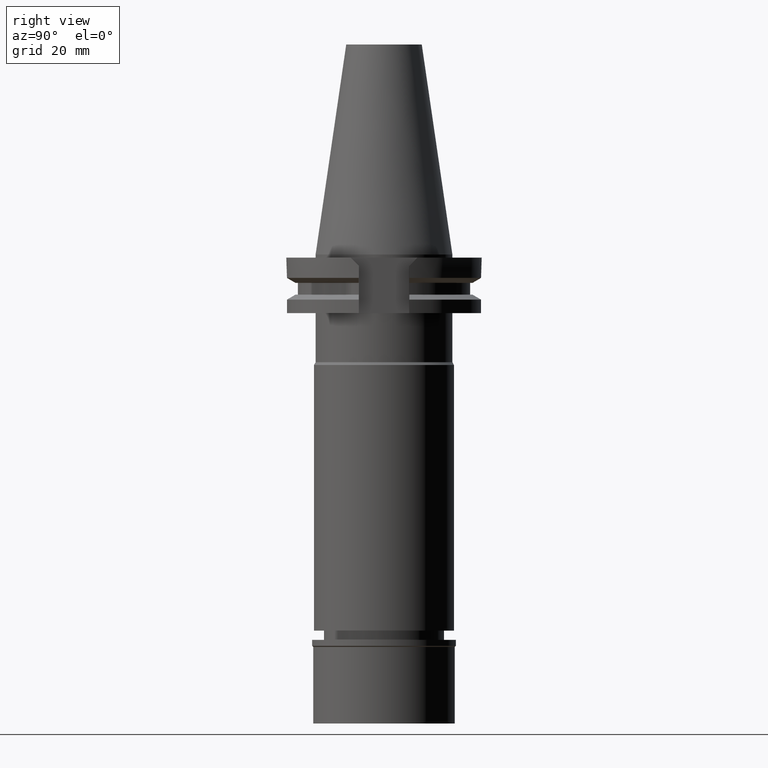
[diagram: clean part render]
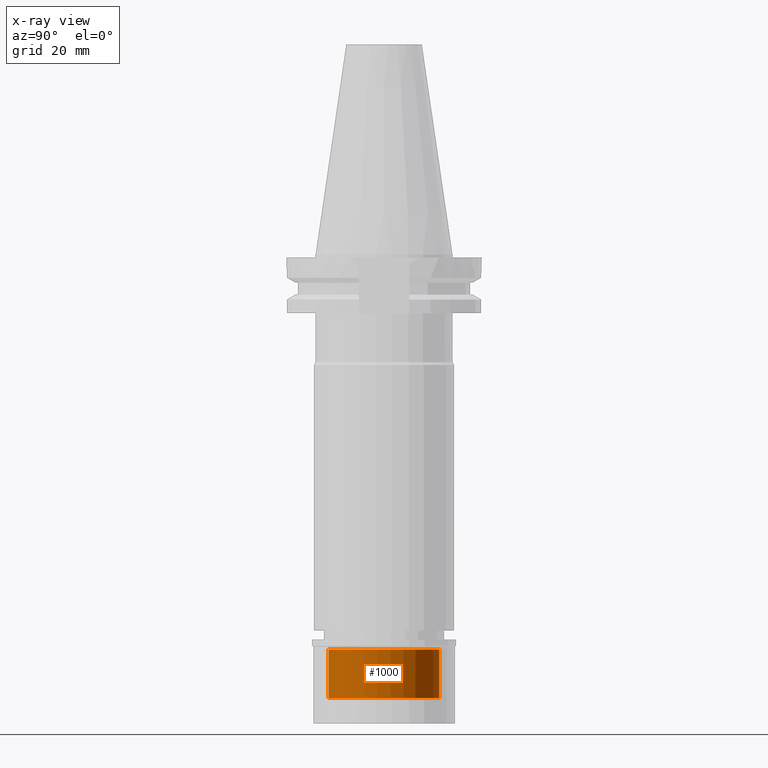
[diagram: x-ray — body ghosted, one internal face saturated and labeled with its STEP entity id]
A machine part, right view, then the same camera in x-ray: the body is ghosted and one INTERNAL B-rep face — a face not visible from any outside direction — is saturated and labeled: STEP entity #1000.
In plain terms, the highlighted cylindrical surface (partial cylindrical patch) has radius 18 mm, axis along (0, 0, -1).
Its self-contained STEP definition (entity closure, byte-faithful):
#65 = DIRECTION ( 'NONE',  ( 0.0000000000000000000, -1.000000000000000000, 0.0000000000000000000 ) ) ;
#151 = ORIENTED_EDGE ( 'NONE', *, *, #3073, .T. ) ;
#276 = FACE_OUTER_BOUND ( 'NONE', #609, .T. ) ;
#481 = VECTOR ( 'NONE', #2636, 1000.000000000000000 ) ;
#497 = CARTESIAN_POINT ( 'NONE',  ( 0.0000000000000000000, 18.00000000000000000, -19.00000000000000000 ) ) ;
#553 = DIRECTION ( 'NONE',  ( 0.0000000000000000000, 0.0000000000000000000, -1.000000000000000000 ) ) ;
#574 = CIRCLE ( 'NONE', #1937, 18.00000000000000000 ) ;
#609 = EDGE_LOOP ( 'NONE', ( #151, #2468, #1714, #2970 ) ) ;
#669 = CIRCLE ( 'NONE', #2078, 18.00000000000000000 ) ;
#703 = LINE ( 'NONE', #2655, #481 ) ;
#852 = DIRECTION ( 'NONE',  ( 0.0000000000000000000, 0.0000000000000000000, 1.000000000000000000 ) ) ;
#1000 = ADVANCED_FACE ( 'NONE', ( #276 ), #1265, .F. ) ;
#1056 = DIRECTION ( 'NONE',  ( 0.0000000000000000000, 1.000000000000000000, 0.0000000000000000000 ) ) ;
#1115 = CARTESIAN_POINT ( 'NONE',  ( 0.0000000000000000000, 0.0000000000000000000, 0.0000000000000000000 ) ) ;
#1123 = EDGE_CURVE ( 'NONE', #2749, #3163, #669, .T. ) ;
#1159 = CARTESIAN_POINT ( 'NONE',  ( 0.0000000000000000000, 18.00000000000000000, -3.200000000000000178 ) ) ;
#1203 = LINE ( 'NONE', #3188, #2965 ) ;
#1265 = CYLINDRICAL_SURFACE ( 'NONE', #1561, 18.00000000000000000 ) ;
#1360 = DIRECTION ( 'NONE',  ( 0.0000000000000000000, -1.000000000000000000, 0.0000000000000000000 ) ) ;
#1561 = AXIS2_PLACEMENT_3D ( 'NONE', #1115, #553, #1360 ) ;
#1615 = CARTESIAN_POINT ( 'NONE',  ( 0.0000000000000000000, 0.0000000000000000000, -3.200000000000000178 ) ) ;
#1714 = ORIENTED_EDGE ( 'NONE', *, *, #1123, .T. ) ;
#1720 = DIRECTION ( 'NONE',  ( 0.0000000000000000000, 0.0000000000000000000, 1.000000000000000000 ) ) ;
#1937 = AXIS2_PLACEMENT_3D ( 'NONE', #3023, #2779, #1056 ) ;
#2078 = AXIS2_PLACEMENT_3D ( 'NONE', #1615, #852, #65 ) ;
#2113 = CARTESIAN_POINT ( 'NONE',  ( 0.0000000000000000000, -18.00000000000000000, -3.200000000000000178 ) ) ;
#2291 = EDGE_CURVE ( 'NONE', #2803, #2749, #703, .T. ) ;
#2435 = EDGE_CURVE ( 'NONE', #2874, #3163, #1203, .T. ) ;
#2468 = ORIENTED_EDGE ( 'NONE', *, *, #2291, .T. ) ;
#2636 = DIRECTION ( 'NONE',  ( 0.0000000000000000000, 0.0000000000000000000, 1.000000000000000000 ) ) ;
#2655 = CARTESIAN_POINT ( 'NONE',  ( 0.0000000000000000000, -18.00000000000000000, -19.00000000000000000 ) ) ;
#2711 = CARTESIAN_POINT ( 'NONE',  ( 0.0000000000000000000, -18.00000000000000000, -19.00000000000000000 ) ) ;
#2749 = VERTEX_POINT ( 'NONE', #2113 ) ;
#2779 = DIRECTION ( 'NONE',  ( 0.0000000000000000000, 0.0000000000000000000, -1.000000000000000000 ) ) ;
#2803 = VERTEX_POINT ( 'NONE', #2711 ) ;
#2874 = VERTEX_POINT ( 'NONE', #497 ) ;
#2965 = VECTOR ( 'NONE', #1720, 1000.000000000000000 ) ;
#2970 = ORIENTED_EDGE ( 'NONE', *, *, #2435, .F. ) ;
#3023 = CARTESIAN_POINT ( 'NONE',  ( 0.0000000000000000000, 0.0000000000000000000, -19.00000000000000000 ) ) ;
#3073 = EDGE_CURVE ( 'NONE', #2874, #2803, #574, .T. ) ;
#3163 = VERTEX_POINT ( 'NONE', #1159 ) ;
#3188 = CARTESIAN_POINT ( 'NONE',  ( 0.0000000000000000000, 18.00000000000000000, -19.00000000000000000 ) ) ;